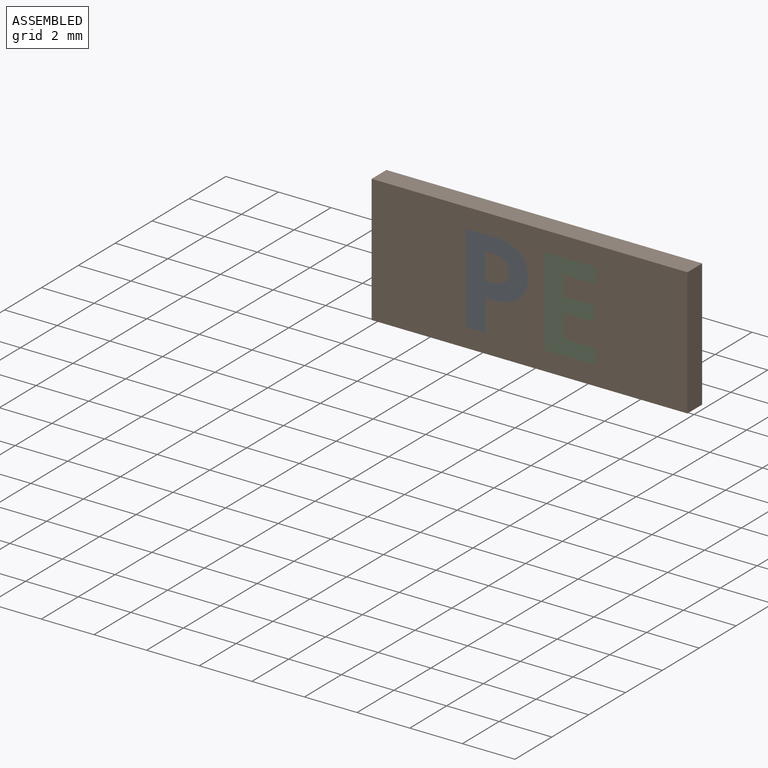
[diagram: assembled view]
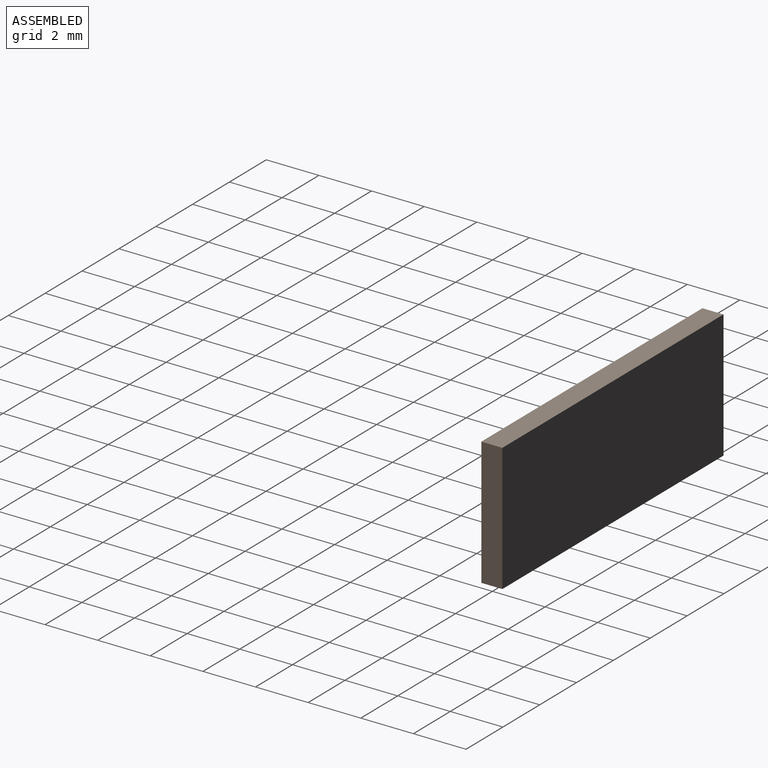
[diagram: assembled view, second angle]
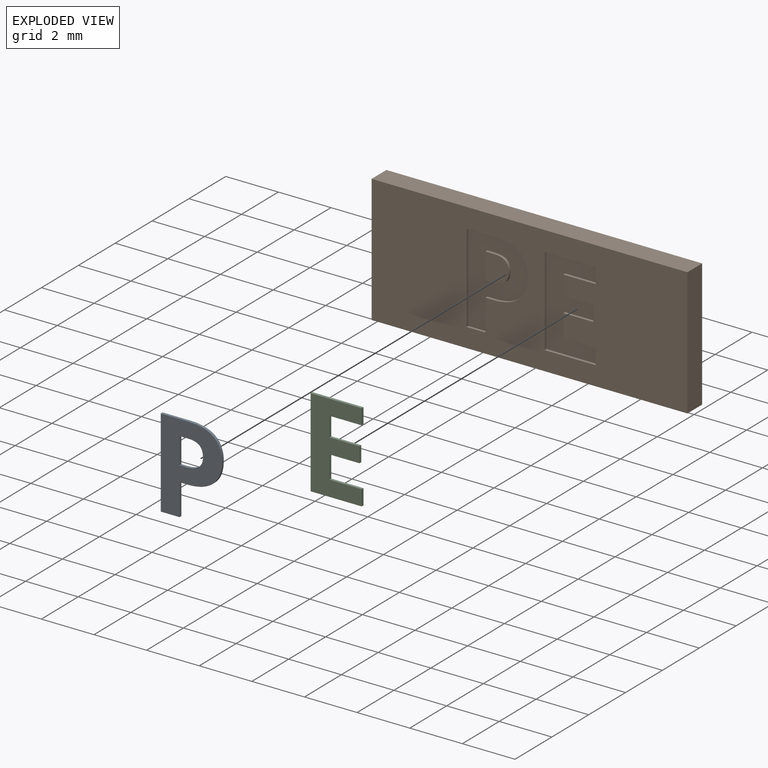
[diagram: exploded view]
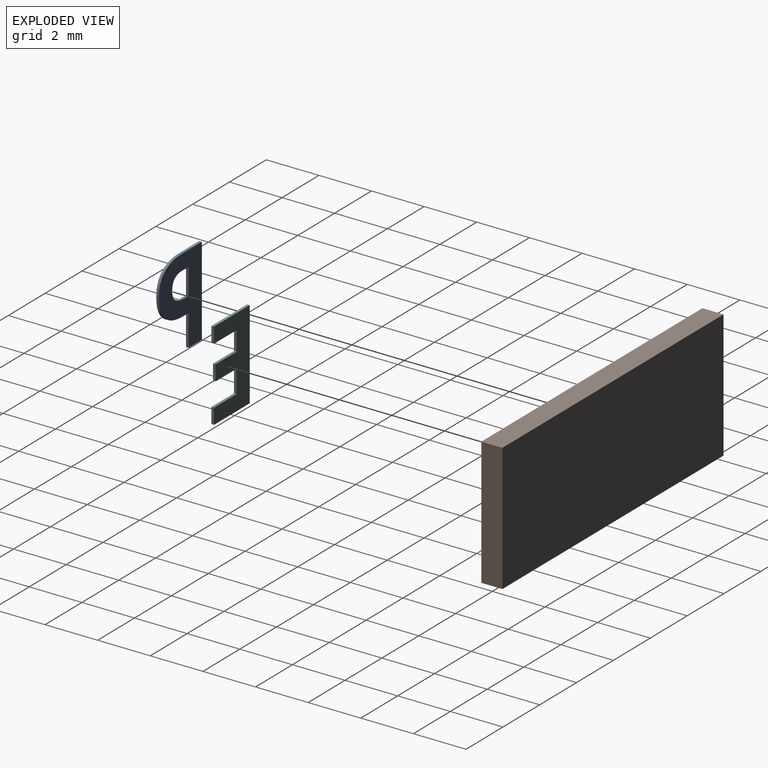
[diagram: exploded view, second angle]
ASSEMBLY  parts=3 mates=2
PART A: 18 faces, bbox 2.3x0.1x3.4 mm
  f0: plane 3.37x2.33mm, normal (0,-1,0), area 4.6mm2, adj f1,f2,f3,f4,f5,f6,f7,f8
  f1: plane 0.32x0.1mm, normal (0,0,-1), area 0mm2, adj f0,f2,f11,f13
  f2: extruded ~0.43x0.12mm, area 0mm2, adj f0,f1,f3,f11
  f3: extruded ~0.37x0.14mm, area 0mm2, adj f0,f2,f4,f11
  f4: extruded ~0.38x0.16mm, area 0mm2, adj f0,f3,f11,f12
  f5: extruded ~0.93x0.26mm, area 0.1mm2, adj f0,f6,f11,f16
  f6: plane 1.08x0.1mm, normal (0,0,1), area 0.1mm2, adj f0,f5,f7,f11
  f7: plane 3.37x0.1mm, normal (-1,0,0), area 0.3mm2, adj f0,f6,f8,f11
  f8: plane 0.72x0.1mm, normal (0,0,-1), area 0.1mm2, adj f0,f7,f9,f11
  f9: plane 1.2x0.1mm, normal (1,0,0), area 0.1mm2, adj f0,f8,f10,f11
  f10: plane 0.31x0.1mm, normal (0,0,-1), area 0mm2, adj f0,f9,f11,f15
  f11: plane 3.37x2.33mm, normal (0,1,0), area 4.6mm2, adj f1,f2,f3,f4,f5,f6,f7,f8
  f12: extruded ~0.49x0.13mm, area 0.1mm2, adj f0,f4,f11,f14
  f13: plane 1x0.1mm, normal (1,0,0), area 0.1mm2, adj f0,f1,f11,f14
  f14: plane 0.24x0.1mm, normal (0,0,1), area 0mm2, adj f0,f11,f12,f13
  f15: extruded ~0.97x0.29mm, area 0.1mm2, adj f0,f10,f11,f17
  f16: extruded ~0.79x0.32mm, area 0.1mm2, adj f0,f5,f11,f17
  f17: extruded ~0.83x0.34mm, area 0.1mm2, adj f0,f11,f15,f16
PART B: 37 faces, bbox 12x0.8x4.9 mm
  f0: plane 12x4.85mm, normal (0,-1,0), area 48.2mm2, adj f1,f2,f3,f4,f12,f13,f14,f15
  f1: plane 4.85x0.8mm, normal (1,0,0), area 3.9mm2, adj f0,f2,f4,f5
  f2: plane 12x0.8mm, normal (0,0,1), area 9.6mm2, adj f0,f1,f3,f5
  f3: plane 4.85x0.8mm, normal (-1,0,0), area 3.9mm2, adj f0,f2,f4,f5
  f4: plane 12x0.8mm, normal (0,0,-1), area 9.6mm2, adj f0,f1,f3,f5
  f5: plane 12x4.85mm, normal (0,1,0), area 58.2mm2, adj f1,f2,f3,f4
  f6: plane 1x0.1mm, normal (-1,0,0), area 0.1mm2, adj f7,f21,f22,f36
  f7: plane 0.32x0.1mm, normal (0,0,1), area 0mm2, adj f6,f8,f22,f36
  f8: extruded ~0.43x0.12mm, area 0mm2, adj f7,f9,f22,f36
  f9: extruded ~0.37x0.14mm, area 0mm2, adj f8,f10,f22,f36
  f10: extruded ~0.38x0.16mm, area 0mm2, adj f9,f11,f22,f36
  f11: extruded ~0.49x0.13mm, area 0.1mm2, adj f10,f21,f22,f36
  f12: extruded ~0.79x0.32mm, area 0.1mm2, adj f0,f13,f20,f22
  f13: extruded ~0.93x0.26mm, area 0.1mm2, adj f0,f12,f14,f22
  f14: plane 1.08x0.1mm, normal (0,0,-1), area 0.1mm2, adj f0,f13,f15,f22
  f15: plane 3.37x0.1mm, normal (1,0,0), area 0.3mm2, adj f0,f14,f16,f22
  f16: plane 0.72x0.1mm, normal (0,0,1), area 0.1mm2, adj f0,f15,f17,f22
  f17: plane 1.2x0.1mm, normal (-1,0,0), area 0.1mm2, adj f0,f16,f18,f22
  f18: plane 0.31x0.1mm, normal (0,0,1), area 0mm2, adj f0,f17,f19,f22
  f19: extruded ~0.97x0.29mm, area 0.1mm2, adj f0,f18,f20,f22
  f20: extruded ~0.83x0.34mm, area 0.1mm2, adj f0,f12,f19,f22
  f21: plane 0.24x0.1mm, normal (0,0,-1), area 0mm2, adj f6,f11,f22,f36
  f22: plane 3.37x2.33mm, normal (0,-1,0), area 4.6mm2, adj f6,f7,f8,f9,f10,f11,f12,f13
  f23: plane 0.59x0.1mm, normal (-1,0,0), area 0.1mm2, adj f0,f24,f34,f35
  f24: plane 1.23x0.1mm, normal (0,0,-1), area 0.1mm2, adj f0,f23,f25,f35
  f25: plane 0.87x0.1mm, normal (-1,0,0), area 0.1mm2, adj f0,f24,f26,f35
  f26: plane 1.14x0.1mm, normal (0,0,1), area 0.1mm2, adj f0,f25,f27,f35
  f27: plane 0.59x0.1mm, normal (-1,0,0), area 0.1mm2, adj f0,f26,f28,f35
  f28: plane 1.14x0.1mm, normal (0,0,-1), area 0.1mm2, adj f0,f27,f29,f35
  f29: plane 0.74x0.1mm, normal (-1,0,0), area 0.1mm2, adj f0,f28,f30,f35
  f30: plane 1.23x0.1mm, normal (0,0,1), area 0.1mm2, adj f0,f29,f31,f35
  f31: plane 0.59x0.1mm, normal (-1,0,0), area 0.1mm2, adj f0,f30,f32,f35
  f32: plane 1.94x0.1mm, normal (0,0,-1), area 0.2mm2, adj f0,f31,f33,f35
  f33: plane 3.37x0.1mm, normal (1,0,0), area 0.3mm2, adj f0,f32,f34,f35
  f34: plane 1.94x0.1mm, normal (0,0,1), area 0.2mm2, adj f0,f23,f33,f35
  f35: plane 3.37x1.94mm, normal (0,-1,0), area 4.5mm2, adj f23,f24,f25,f26,f27,f28,f29,f30
  f36: plane 1x0.89mm, normal (0,-1,0), area 0.8mm2, adj f6,f7,f8,f9,f10,f11,f21
PART C: 14 faces, bbox 1.9x0.1x3.4 mm
  f0: plane 3.37x1.94mm, normal (0,-1,0), area 4.5mm2, adj f1,f2,f3,f4,f5,f6,f7,f8
  f1: plane 1.23x0.1mm, normal (0,0,1), area 0.1mm2, adj f0,f2,f10,f12
  f2: plane 0.87x0.1mm, normal (1,0,0), area 0.1mm2, adj f0,f1,f3,f10
  f3: plane 1.14x0.1mm, normal (0,0,-1), area 0.1mm2, adj f0,f2,f4,f10
  f4: plane 0.59x0.1mm, normal (1,0,0), area 0.1mm2, adj f0,f3,f5,f10
  f5: plane 1.14x0.1mm, normal (0,0,1), area 0.1mm2, adj f0,f4,f6,f10
  f6: plane 0.74x0.1mm, normal (1,0,0), area 0.1mm2, adj f0,f5,f7,f10
  f7: plane 1.23x0.1mm, normal (0,0,-1), area 0.1mm2, adj f0,f6,f8,f10
  f8: plane 0.59x0.1mm, normal (1,0,0), area 0.1mm2, adj f0,f7,f9,f10
  f9: plane 1.94x0.1mm, normal (0,0,1), area 0.2mm2, adj f0,f8,f10,f11
  f10: plane 3.37x1.94mm, normal (0,1,0), area 4.5mm2, adj f1,f2,f3,f4,f5,f6,f7,f8
  f11: plane 3.37x0.1mm, normal (-1,0,0), area 0.3mm2, adj f0,f9,f10,f13
  f12: plane 0.59x0.1mm, normal (1,0,0), area 0.1mm2, adj f0,f1,f10,f13
  f13: plane 1.94x0.1mm, normal (0,0,-1), area 0.2mm2, adj f0,f10,f11,f12
PLACE A t=(0.03,0.4,-0.02)mm
PLACE B t=(0.03,0.4,-0.02)mm
PLACE C t=(0.03,0.4,-0.02)mm
MATE fastened A.f0 <-> B.f0  axis (0,-1,0) through (-2.37,-0.4,-1.72)mm
MATE fastened C.f0 <-> B.f0  axis (0,-1,0) through (0.6,-0.4,-1.72)mm
